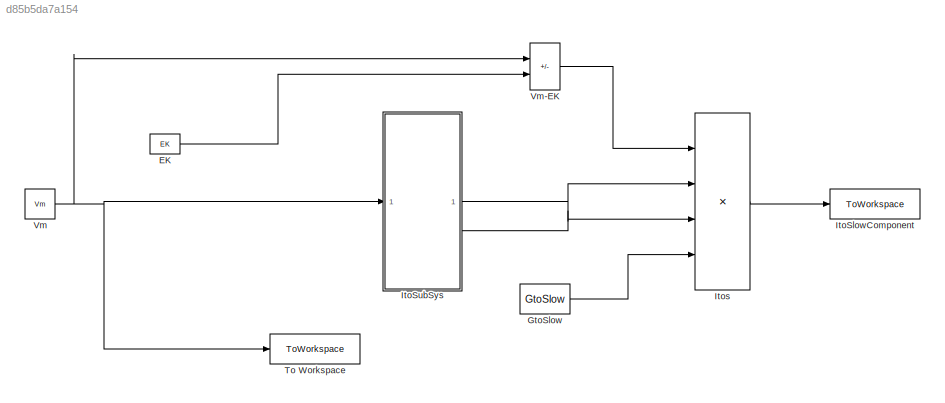
MODEL slx_d85b5da7a154
KIND model
CONFIG AbsTol = auto
CONFIG EnableMultiTasking = off
CONFIG FixedStep = auto
CONFIG MaxStep = auto
CONFIG MinStep = auto
CONFIG RelTol = 1e-3
CONFIG SampleTimeConstraint = Unconstrained
CONFIG SolverName = VariableStepAuto
CONFIG StartTime = 0.0
CONFIG StopTime = 2000
BLOCK [Constant] EK
  Value = EK
BLOCK [Constant] GtoSlow
  NameLocation = top
  Value = GtoSlow
BLOCK [ToWorkspace] ItoSlowComponent
  FixptAsFi = on
  MaxDataPoints = inf
  SampleTime = -1
  VariableName = ItoSlow
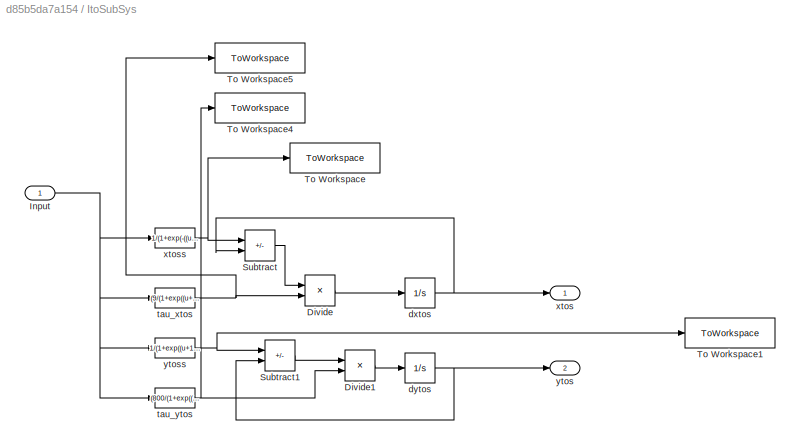
BLOCK [SubSystem] ItoSubSys
BLOCK [Integrator] ItoSubSys/ dxtos
BLOCK [Product] ItoSubSys/Divide
  Inputs = */
BLOCK [Product] ItoSubSys/Divide1
  Inputs = */
BLOCK [Inport] ItoSubSys/Input
BLOCK [Sum] ItoSubSys/Subtract
  IconShape = rectangular
  Inputs = +-
BLOCK [Sum] ItoSubSys/Subtract1
  IconShape = rectangular
  Inputs = +-
BLOCK [ToWorkspace] ItoSubSys/To Workspace
  FixptAsFi = on
  MaxDataPoints = inf
  SampleTime = -1
  VariableName = xtoss
BLOCK [ToWorkspace] ItoSubSys/To Workspace1
  FixptAsFi = on
  MaxDataPoints = inf
  SampleTime = -1
  VariableName = ytoss
BLOCK [ToWorkspace] ItoSubSys/To Workspace4
  FixptAsFi = on
  MaxDataPoints = inf
  SampleTime = -1
  VariableName = tau_ytos
BLOCK [ToWorkspace] ItoSubSys/To Workspace5
  FixptAsFi = on
  MaxDataPoints = inf
  SampleTime = -1
  VariableName = tau_xtos
BLOCK [Integrator] ItoSubSys/dytos
  InitialCondition = 1
BLOCK [Fcn] ItoSubSys/tau_xtos
  Expr = (9/(1+exp((u+3)/15)))+0.5
BLOCK [Fcn] ItoSubSys/tau_ytos
  Expr = (800/(1+exp((u+60)/10)))+30
BLOCK [Outport] ItoSubSys/xtos
BLOCK [Fcn] ItoSubSys/xtoss
  Expr = 1/(1+exp(-((u-19.0)/13)))
BLOCK [Outport] ItoSubSys/ytos
  Port = 2
BLOCK [Fcn] ItoSubSys/ytoss
  Expr = 1/(1+exp((u+19.5)/5))
BLOCK [Product] Itos
  Inputs = 4
BLOCK [ToWorkspace] To Workspace
  FixptAsFi = on
  MaxDataPoints = inf
  SampleTime = -1
  VariableName = VmOut
BLOCK [Constant] Vm
  Value = Vm
BLOCK [Sum] Vm-EK
  IconShape = rectangular
  Inputs = +-
LINE EK:1 -> Vm-EK:2
LINE GtoSlow:1 -> Itos:4
NET ItoSubSys/ dxtos:1 -> ItoSubSys/Subtract:2, ItoSubSys/xtos:1
LINE ItoSubSys/Divide1:1 -> ItoSubSys/dytos:1
LINE ItoSubSys/Divide:1 -> ItoSubSys/ dxtos:1
NET ItoSubSys/Input:1 -> ItoSubSys/tau_xtos:1, ItoSubSys/tau_ytos:1, ItoSubSys/xtoss:1, ItoSubSys/ytoss:1
LINE ItoSubSys/Subtract1:1 -> ItoSubSys/Divide1:1
LINE ItoSubSys/Subtract:1 -> ItoSubSys/Divide:1
NET ItoSubSys/dytos:1 -> ItoSubSys/Subtract1:2, ItoSubSys/ytos:1
NET ItoSubSys/tau_xtos:1 -> ItoSubSys/Divide:2, ItoSubSys/To Workspace5:1
NET ItoSubSys/tau_ytos:1 -> ItoSubSys/Divide1:2, ItoSubSys/To Workspace4:1
NET ItoSubSys/xtoss:1 -> ItoSubSys/Subtract:1, ItoSubSys/To Workspace:1
NET ItoSubSys/ytoss:1 -> ItoSubSys/Subtract1:1, ItoSubSys/To Workspace1:1
LINE ItoSubSys:1 -> Itos:2
LINE ItoSubSys:2 -> Itos:3
LINE Itos:1 -> ItoSlowComponent:1
LINE Vm-EK:1 -> Itos:1
NET Vm:1 -> ItoSubSys:1, To Workspace:1, Vm-EK:1
note: NET lines group one-source signal fan-out (src -> all destinations, sorted); 1:1 wires keep LINE
